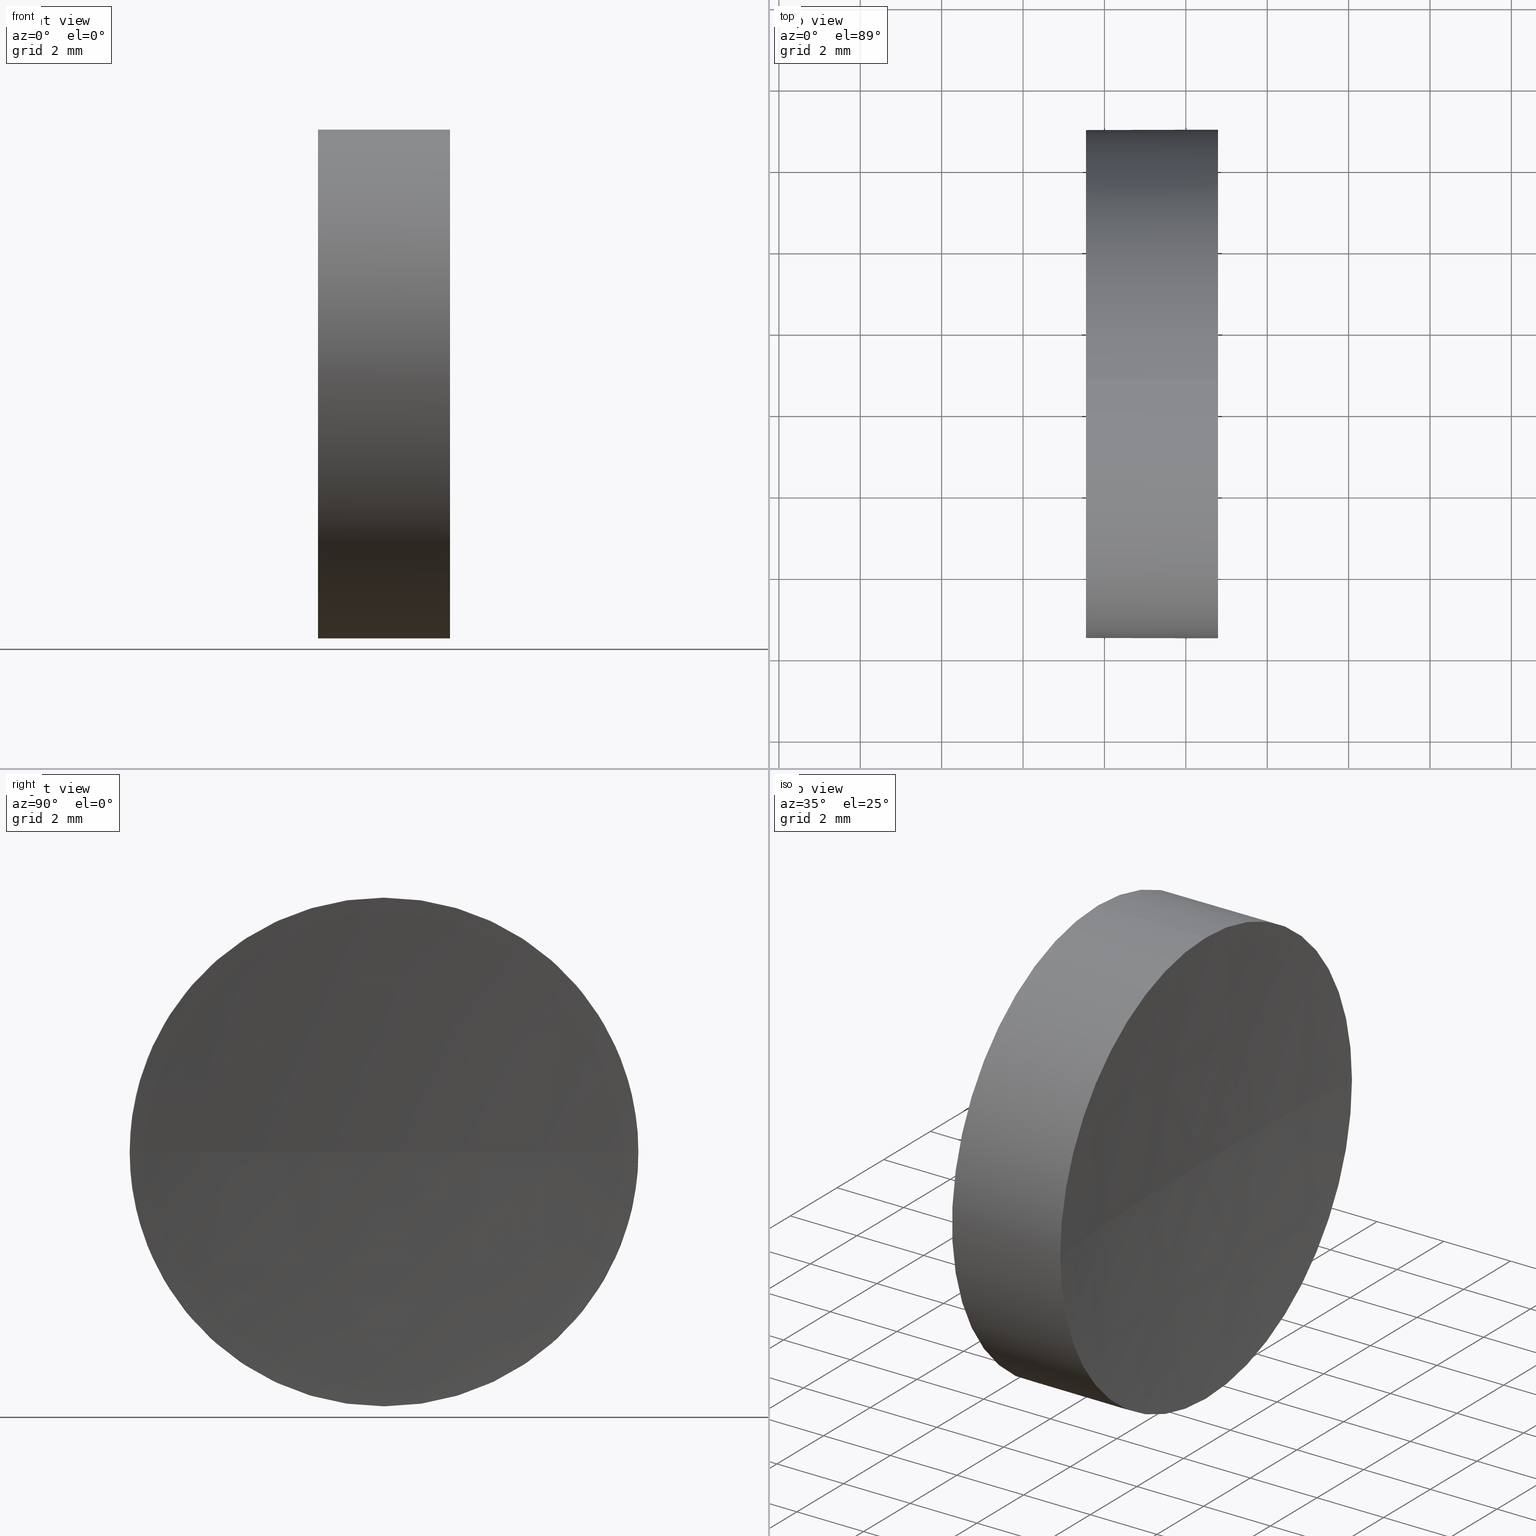
[diagram: canonical four-view strip — front | top / right | iso, engineering-drawing reading convention]
A machine part, canonical four-view strip (front | top / right | iso — engineering-drawing reading convention). The complete STEP part file that produces these views, byte-faithful:
ISO-10303-21;
HEADER;
FILE_DESCRIPTION (( 'STEP AP214' ),
    '1' );
FILE_NAME ('270007.STEP',
    '2019-07-22T02:43:26',
    ( '' ),
    ( '' ),
    'SwSTEP 2.0',
    'SolidWorks 2016',
    '' );
FILE_SCHEMA (( 'AUTOMOTIVE_DESIGN' ));
ENDSEC;

DATA;
#1 = AXIS2_PLACEMENT_3D ( 'NONE', #144, #91, #116 ) ;
#2 = DIRECTION ( 'NONE',  ( -1.000000000000000000, -0.0000000000000000000, -0.0000000000000000000 ) ) ;
#3 = STYLED_ITEM ( 'NONE', ( #95 ), #16 ) ;
#4 = CARTESIAN_POINT ( 'NONE',  ( 54.49257150108255100, 34.68901056168621700, -6.249999999999998200 ) ) ;
#5 = SURFACE_SIDE_STYLE ('',( #35 ) ) ;
#6 = ORIENTED_EDGE ( 'NONE', *, *, #17, .T. ) ;
#7 = DIRECTION ( 'NONE',  ( 0.0000000000000000000, 0.0000000000000000000, 1.000000000000000000 ) ) ;
#8 = CARTESIAN_POINT ( 'NONE',  ( 60.79084220315108000, 34.68901056168621700, -6.249999999999998200 ) ) ;
#9 = CYLINDRICAL_SURFACE ( 'NONE', #12, 6.249999999999998200 ) ;
#10 = VERTEX_POINT ( 'NONE', #141 ) ;
#11 = DIRECTION ( 'NONE',  ( 0.0000000000000000000, 0.0000000000000000000, 1.000000000000000000 ) ) ;
#12 = AXIS2_PLACEMENT_3D ( 'NONE', #70, #106, #148 ) ;
#13 = APPLICATION_CONTEXT ( 'automotive_design' ) ;
#14 = ORIENTED_EDGE ( 'NONE', *, *, #63, .T. ) ;
#15 = ORIENTED_EDGE ( 'NONE', *, *, #63, .F. ) ;
#16 = ADVANCED_BREP_SHAPE_REPRESENTATION ( '270007', ( #62, #82 ), #30 ) ;
#17 = EDGE_CURVE ( 'NONE', #75, #51, #39, .T. ) ;
#18 = DIRECTION ( 'NONE',  ( -1.000000000000000000, -0.0000000000000000000, -0.0000000000000000000 ) ) ;
#19 = CARTESIAN_POINT ( 'NONE',  ( 57.54632776745975800, 34.68901056168621700, 6.249999999999998200 ) ) ;
#20 = ORIENTED_EDGE ( 'NONE', *, *, #174, .F. ) ;
#21 = CARTESIAN_POINT ( 'NONE',  ( 57.54632776745975800, 34.68901056168621700, 0.0000000000000000000 ) ) ;
#22 = DIRECTION ( 'NONE',  ( 0.0000000000000000000, 0.0000000000000000000, 1.000000000000000000 ) ) ;
#23 = CARTESIAN_POINT ( 'NONE',  ( 57.54632776745975800, 34.68901056168621700, 0.0000000000000000000 ) ) ;
#24 = PRODUCT_RELATED_PRODUCT_CATEGORY ( 'part', '', ( #143 ) ) ;
#25 = ADVANCED_FACE ( 'NONE', ( #169 ), #105, .F. ) ;
#26 = ORIENTED_EDGE ( 'NONE', *, *, #174, .T. ) ;
#27 = CIRCLE ( 'NONE', #123, 6.249999999999998200 ) ;
#28 = EDGE_CURVE ( 'NONE', #113, #29, #183, .T. ) ;
#29 = VERTEX_POINT ( 'NONE', #19 ) ;
#30 =( GEOMETRIC_REPRESENTATION_CONTEXT ( 3 ) GLOBAL_UNCERTAINTY_ASSIGNED_CONTEXT ( ( #49 ) ) GLOBAL_UNIT_ASSIGNED_CONTEXT ( ( #151, #131, #96 ) ) REPRESENTATION_CONTEXT ( 'NONE', 'WORKASPACE' ) );
#31 = PRODUCT_DEFINITION_SHAPE ( 'NONE', 'NONE',  #58 ) ;
#32 = VECTOR ( 'NONE', #2, 1000.000000000000000 ) ;
#33 = DIRECTION ( 'NONE',  ( -1.000000000000000000, -0.0000000000000000000, -0.0000000000000000000 ) ) ;
#34 = DIRECTION ( 'NONE',  ( 0.0000000000000000000, 1.000000000000000000, 0.0000000000000000000 ) ) ;
#35 = SURFACE_STYLE_FILL_AREA ( #114 ) ;
#36 = PRODUCT_DEFINITION_FORMATION_WITH_SPECIFIED_SOURCE ( '�κ�', '', #143, .NOT_KNOWN. ) ;
#37 = CARTESIAN_POINT ( 'NONE',  ( 60.79084220315108000, 40.93901056168626700, 0.0000000000000000000 ) ) ;
#38 = CARTESIAN_POINT ( 'NONE',  ( 54.49257150108255100, 34.68901056168621700, 0.0000000000000000000 ) ) ;
#39 = LINE ( 'NONE', #4, #140 ) ;
#40 = DIRECTION ( 'NONE',  ( 0.0000000000000000000, 0.0000000000000000000, 1.000000000000000000 ) ) ;
#41 = ADVANCED_FACE ( 'NONE', ( #149 ), #74, .F. ) ;
#42 = CIRCLE ( 'NONE', #66, 79.99999999999998600 ) ;
#43 = EDGE_LOOP ( 'NONE', ( #20, #85, #78, #153 ) ) ;
#44 =( LENGTH_UNIT ( ) NAMED_UNIT ( * ) SI_UNIT ( .MILLI., .METRE. ) );
#45 = VERTEX_POINT ( 'NONE', #50 ) ;
#46 = PRESENTATION_LAYER_ASSIGNMENT (  '', '', ( #3 ) ) ;
#47 = ORIENTED_EDGE ( 'NONE', *, *, #79, .T. ) ;
#48 = CYLINDRICAL_SURFACE ( 'NONE', #177, 6.249999999999998200 ) ;
#49 = UNCERTAINTY_MEASURE_WITH_UNIT (LENGTH_MEASURE( 1.000000000000000100E-005 ), #151, 'distance_accuracy_value', 'NONE');
#50 = CARTESIAN_POINT ( 'NONE',  ( 60.79084220315108000, 28.43901056168611800, -7.654042494671008900E-016 ) ) ;
#51 = VERTEX_POINT ( 'NONE', #76 ) ;
#52 = CARTESIAN_POINT ( 'NONE',  ( 54.49257150108255100, 34.68901056168621700, 6.249999999999998200 ) ) ;
#53 = PRESENTATION_STYLE_ASSIGNMENT (( #161 ) ) ;
#54 = CLOSED_SHELL ( 'NONE', ( #167, #25, #41, #133, #150 ) ) ;
#55 = DIRECTION ( 'NONE',  ( 0.0000000000000000000, 0.0000000000000000000, 1.000000000000000000 ) ) ;
#56 =( GEOMETRIC_REPRESENTATION_CONTEXT ( 3 ) GLOBAL_UNCERTAINTY_ASSIGNED_CONTEXT ( ( #99 ) ) GLOBAL_UNIT_ASSIGNED_CONTEXT ( ( #172, #159, #101 ) ) REPRESENTATION_CONTEXT ( 'NONE', 'WORKASPACE' ) );
#57 = PLANE ( 'NONE',  #65 ) ;
#58 = PRODUCT_DEFINITION ( 'δ֪', '', #36, #93 ) ;
#59 = SURFACE_STYLE_USAGE ( .BOTH. , #119 ) ;
#60 = ORIENTED_EDGE ( 'NONE', *, *, #165, .T. ) ;
#61 = APPLICATION_PROTOCOL_DEFINITION ( 'draft international standard', 'automotive_design', 1998, #81 ) ;
#62 = MANIFOLD_SOLID_BREP ( '��ת1', #54 ) ;
#63 = EDGE_CURVE ( 'NONE', #75, #45, #100, .T. ) ;
#64 = ORIENTED_EDGE ( 'NONE', *, *, #83, .F. ) ;
#65 = AXIS2_PLACEMENT_3D ( 'NONE', #92, #129, #102 ) ;
#66 = AXIS2_PLACEMENT_3D ( 'NONE', #176, #55, #118 ) ;
#67 = CARTESIAN_POINT ( 'NONE',  ( 140.5463279078974200, 34.68901056168616000, 0.0000000000000000000 ) ) ;
#68 = FACE_OUTER_BOUND ( 'NONE', #135, .T. ) ;
#69 = DIRECTION ( 'NONE',  ( -1.000000000000000000, -0.0000000000000000000, -0.0000000000000000000 ) ) ;
#70 = CARTESIAN_POINT ( 'NONE',  ( 54.49257150108255100, 34.68901056168621700, 0.0000000000000000000 ) ) ;
#71 =( NAMED_UNIT ( * ) SI_UNIT ( $, .STERADIAN. ) SOLID_ANGLE_UNIT ( ) );
#72 =( NAMED_UNIT ( * ) PLANE_ANGLE_UNIT ( ) SI_UNIT ( $, .RADIAN. ) );
#73 =( GEOMETRIC_REPRESENTATION_CONTEXT ( 3 ) GLOBAL_UNCERTAINTY_ASSIGNED_CONTEXT ( ( #147 ) ) GLOBAL_UNIT_ASSIGNED_CONTEXT ( ( #44, #72, #71 ) ) REPRESENTATION_CONTEXT ( 'NONE', 'WORKASPACE' ) );
#74 = SPHERICAL_SURFACE ( 'NONE', #137, 80.00000000000000000 ) ;
#75 = VERTEX_POINT ( 'NONE', #8 ) ;
#76 = CARTESIAN_POINT ( 'NONE',  ( 57.54632776745975800, 34.68901056168621700, -6.249999999999998200 ) ) ;
#77 = DIRECTION ( 'NONE',  ( -1.000000000000000000, -0.0000000000000000000, -0.0000000000000000000 ) ) ;
#78 = ORIENTED_EDGE ( 'NONE', *, *, #108, .F. ) ;
#79 = EDGE_CURVE ( 'NONE', #122, #75, #178, .T. ) ;
#80 = CARTESIAN_POINT ( 'NONE',  ( 60.79084220315108000, 34.68901056168621700, 0.0000000000000000000 ) ) ;
#81 = APPLICATION_CONTEXT ( 'automotive_design' ) ;
#82 = AXIS2_PLACEMENT_3D ( 'NONE', #170, #166, #94 ) ;
#83 = EDGE_CURVE ( 'NONE', #45, #10, #186, .T. ) ;
#84 = ORIENTED_EDGE ( 'NONE', *, *, #28, .F. ) ;
#85 = ORIENTED_EDGE ( 'NONE', *, *, #83, .T. ) ;
#86 = AXIS2_PLACEMENT_3D ( 'NONE', #21, #104, #22 ) ;
#87 = AXIS2_PLACEMENT_3D ( 'NONE', #175, #89, #7 ) ;
#88 = FILL_AREA_STYLE_COLOUR ( '', #138 ) ;
#89 = DIRECTION ( 'NONE',  ( -1.000000000000000000, -0.0000000000000000000, -0.0000000000000000000 ) ) ;
#90 = FACE_OUTER_BOUND ( 'NONE', #110, .T. ) ;
#91 = DIRECTION ( 'NONE',  ( 0.0000000000000000000, 0.0000000000000000000, -1.000000000000000000 ) ) ;
#92 = CARTESIAN_POINT ( 'NONE',  ( 57.54632776745975800, 34.68901056168621700, 0.0000000000000000000 ) ) ;
#93 = PRODUCT_DEFINITION_CONTEXT ( 'detailed design', #13, 'design' ) ;
#94 = DIRECTION ( 'NONE',  ( 1.000000000000000000, 0.0000000000000000000, 0.0000000000000000000 ) ) ;
#95 = PRESENTATION_STYLE_ASSIGNMENT (( #59 ) ) ;
#96 =( NAMED_UNIT ( * ) SI_UNIT ( $, .STERADIAN. ) SOLID_ANGLE_UNIT ( ) );
#97 = ORIENTED_EDGE ( 'NONE', *, *, #154, .F. ) ;
#98 = CARTESIAN_POINT ( 'NONE',  ( 60.79084220315108000, 34.68901056168621700, 0.0000000000000000000 ) ) ;
#99 = UNCERTAINTY_MEASURE_WITH_UNIT (LENGTH_MEASURE( 1.000000000000000100E-005 ), #172, 'distance_accuracy_value', 'NONE');
#100 = CIRCLE ( 'NONE', #87, 6.249999999999998200 ) ;
#101 =( NAMED_UNIT ( * ) SI_UNIT ( $, .STERADIAN. ) SOLID_ANGLE_UNIT ( ) );
#102 = DIRECTION ( 'NONE',  ( 0.0000000000000000000, 0.0000000000000000000, -1.000000000000000000 ) ) ;
#103 = SHAPE_DEFINITION_REPRESENTATION ( #31, #16 ) ;
#104 = DIRECTION ( 'NONE',  ( -1.000000000000000000, -0.0000000000000000000, -0.0000000000000000000 ) ) ;
#105 = SPHERICAL_SURFACE ( 'NONE', #1, 80.00000000000000000 ) ;
#106 = DIRECTION ( 'NONE',  ( -1.000000000000000000, -0.0000000000000000000, -0.0000000000000000000 ) ) ;
#107 = DIRECTION ( 'NONE',  ( 0.0000000000000000000, 0.0000000000000000000, 1.000000000000000000 ) ) ;
#108 = EDGE_CURVE ( 'NONE', #122, #10, #42, .T. ) ;
#109 = ORIENTED_EDGE ( 'NONE', *, *, #154, .T. ) ;
#110 = EDGE_LOOP ( 'NONE', ( #124, #109 ) ) ;
#111 = EDGE_LOOP ( 'NONE', ( #64, #15, #155, #121 ) ) ;
#112 = CIRCLE ( 'NONE', #163, 6.249999999999998200 ) ;
#113 = VERTEX_POINT ( 'NONE', #127 ) ;
#114 = FILL_AREA_STYLE ('',( #88 ) ) ;
#115 = ORIENTED_EDGE ( 'NONE', *, *, #17, .F. ) ;
#116 = DIRECTION ( 'NONE',  ( 0.0000000000000000000, 1.000000000000000000, 0.0000000000000000000 ) ) ;
#117 = EDGE_LOOP ( 'NONE', ( #115, #14, #26, #139, #97 ) ) ;
#118 = DIRECTION ( 'NONE',  ( 1.000000000000000000, 0.0000000000000000000, 0.0000000000000000000 ) ) ;
#119 = SURFACE_SIDE_STYLE ('',( #182 ) ) ;
#120 = APPLICATION_PROTOCOL_DEFINITION ( 'draft international standard', 'automotive_design', 1998, #13 ) ;
#121 = ORIENTED_EDGE ( 'NONE', *, *, #108, .T. ) ;
#122 = VERTEX_POINT ( 'NONE', #37 ) ;
#123 = AXIS2_PLACEMENT_3D ( 'NONE', #80, #181, #40 ) ;
#124 = ORIENTED_EDGE ( 'NONE', *, *, #173, .T. ) ;
#125 = STYLED_ITEM ( 'NONE', ( #53 ), #62 ) ;
#126 = DIRECTION ( 'NONE',  ( 0.0000000000000000000, 0.0000000000000000000, 1.000000000000000000 ) ) ;
#127 = CARTESIAN_POINT ( 'NONE',  ( 60.79084220315108000, 34.68901056168621700, 6.249999999999998200 ) ) ;
#128 = COLOUR_RGB ( '',1.000000000000000000, 1.000000000000000000, 1.000000000000000000 ) ;
#129 = DIRECTION ( 'NONE',  ( 1.000000000000000000, 0.0000000000000000000, 0.0000000000000000000 ) ) ;
#130 = DIRECTION ( 'NONE',  ( 0.0000000000000000000, 0.0000000000000000000, 1.000000000000000000 ) ) ;
#131 =( NAMED_UNIT ( * ) PLANE_ANGLE_UNIT ( ) SI_UNIT ( $, .RADIAN. ) );
#132 = FACE_OUTER_BOUND ( 'NONE', #117, .T. ) ;
#133 = ADVANCED_FACE ( 'NONE', ( #132 ), #48, .T. ) ;
#134 = FILL_AREA_STYLE_COLOUR ( '', #128 ) ;
#135 = EDGE_LOOP ( 'NONE', ( #47, #6, #160, #84, #60 ) ) ;
#136 = FILL_AREA_STYLE ('',( #134 ) ) ;
#137 = AXIS2_PLACEMENT_3D ( 'NONE', #67, #158, #34 ) ;
#138 = COLOUR_RGB ( '',1.000000000000000000, 1.000000000000000000, 1.000000000000000000 ) ;
#139 = ORIENTED_EDGE ( 'NONE', *, *, #28, .T. ) ;
#140 = VECTOR ( 'NONE', #69, 1000.000000000000000 ) ;
#141 = CARTESIAN_POINT ( 'NONE',  ( 60.54632790789742100, 34.68901056168616700, 0.0000000000000000000 ) ) ;
#142 = CIRCLE ( 'NONE', #86, 6.249999999999998200 ) ;
#143 = PRODUCT ( '270007', '270007', '', ( #168 ) ) ;
#144 = CARTESIAN_POINT ( 'NONE',  ( 140.5463279078974200, 34.68901056168616000, 0.0000000000000000000 ) ) ;
#145 = PRESENTATION_LAYER_ASSIGNMENT (  '', '', ( #125 ) ) ;
#146 = CARTESIAN_POINT ( 'NONE',  ( 140.5463279078974200, 34.68901056168616000, 0.0000000000000000000 ) ) ;
#147 = UNCERTAINTY_MEASURE_WITH_UNIT (LENGTH_MEASURE( 1.000000000000000100E-005 ), #44, 'distance_accuracy_value', 'NONE');
#148 = DIRECTION ( 'NONE',  ( 0.0000000000000000000, 0.0000000000000000000, 1.000000000000000000 ) ) ;
#149 = FACE_OUTER_BOUND ( 'NONE', #111, .T. ) ;
#150 = ADVANCED_FACE ( 'NONE', ( #90 ), #57, .F. ) ;
#151 =( LENGTH_UNIT ( ) NAMED_UNIT ( * ) SI_UNIT ( .MILLI., .METRE. ) );
#152 = CIRCLE ( 'NONE', #184, 6.249999999999998200 ) ;
#153 = ORIENTED_EDGE ( 'NONE', *, *, #165, .F. ) ;
#154 = EDGE_CURVE ( 'NONE', #51, #29, #142, .T. ) ;
#155 = ORIENTED_EDGE ( 'NONE', *, *, #79, .F. ) ;
#156 = AXIS2_PLACEMENT_3D ( 'NONE', #98, #18, #126 ) ;
#157 = CARTESIAN_POINT ( 'NONE',  ( 60.79084220315108000, 34.68901056168621700, 0.0000000000000000000 ) ) ;
#158 = DIRECTION ( 'NONE',  ( 0.0000000000000000000, 0.0000000000000000000, -1.000000000000000000 ) ) ;
#159 =( NAMED_UNIT ( * ) PLANE_ANGLE_UNIT ( ) SI_UNIT ( $, .RADIAN. ) );
#160 = ORIENTED_EDGE ( 'NONE', *, *, #173, .F. ) ;
#161 = SURFACE_STYLE_USAGE ( .BOTH. , #5 ) ;
#162 = DIRECTION ( 'NONE',  ( 0.0000000000000000000, 1.224646799147353200E-016, -1.000000000000000000 ) ) ;
#163 = AXIS2_PLACEMENT_3D ( 'NONE', #23, #77, #11 ) ;
#164 = DIRECTION ( 'NONE',  ( 0.0000000000000000000, 1.000000000000000000, 1.224646799147353200E-016 ) ) ;
#165 = EDGE_CURVE ( 'NONE', #113, #122, #27, .T. ) ;
#166 = DIRECTION ( 'NONE',  ( 0.0000000000000000000, 0.0000000000000000000, 1.000000000000000000 ) ) ;
#167 = ADVANCED_FACE ( 'NONE', ( #68 ), #9, .T. ) ;
#168 = PRODUCT_CONTEXT ( 'NONE', #81, 'mechanical' ) ;
#169 = FACE_OUTER_BOUND ( 'NONE', #43, .T. ) ;
#170 = CARTESIAN_POINT ( 'NONE',  ( 0.0000000000000000000, 0.0000000000000000000, 0.0000000000000000000 ) ) ;
#171 = AXIS2_PLACEMENT_3D ( 'NONE', #146, #162, #164 ) ;
#172 =( LENGTH_UNIT ( ) NAMED_UNIT ( * ) SI_UNIT ( .MILLI., .METRE. ) );
#173 = EDGE_CURVE ( 'NONE', #29, #51, #112, .T. ) ;
#174 = EDGE_CURVE ( 'NONE', #45, #113, #152, .T. ) ;
#175 = CARTESIAN_POINT ( 'NONE',  ( 60.79084220315108000, 34.68901056168621700, 0.0000000000000000000 ) ) ;
#176 = CARTESIAN_POINT ( 'NONE',  ( 140.5463279078974200, 34.68901056168616000, 0.0000000000000000000 ) ) ;
#177 = AXIS2_PLACEMENT_3D ( 'NONE', #38, #179, #130 ) ;
#178 = CIRCLE ( 'NONE', #156, 6.249999999999998200 ) ;
#179 = DIRECTION ( 'NONE',  ( -1.000000000000000000, -0.0000000000000000000, -0.0000000000000000000 ) ) ;
#180 = MECHANICAL_DESIGN_GEOMETRIC_PRESENTATION_REPRESENTATION (  '', ( #3 ), #73 ) ;
#181 = DIRECTION ( 'NONE',  ( -1.000000000000000000, -0.0000000000000000000, -0.0000000000000000000 ) ) ;
#182 = SURFACE_STYLE_FILL_AREA ( #136 ) ;
#183 = LINE ( 'NONE', #52, #32 ) ;
#184 = AXIS2_PLACEMENT_3D ( 'NONE', #157, #33, #107 ) ;
#185 = MECHANICAL_DESIGN_GEOMETRIC_PRESENTATION_REPRESENTATION (  '', ( #125 ), #56 ) ;
#186 = CIRCLE ( 'NONE', #171, 80.00000000000000000 ) ;
ENDSEC;
END-ISO-10303-21;
